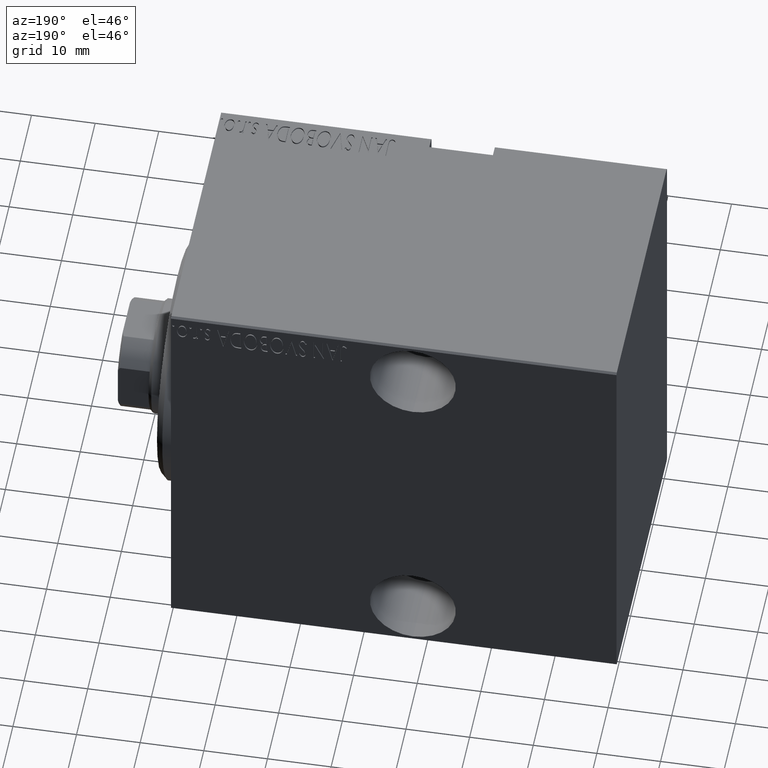
[diagram: clean part render]
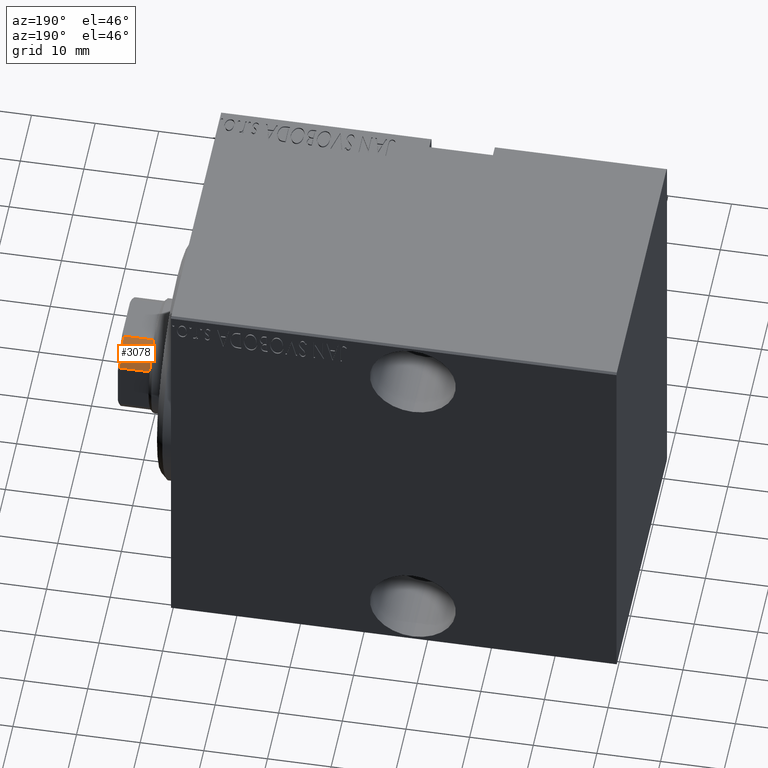
[diagram: same view with one face highlighted and labeled with its STEP entity id]
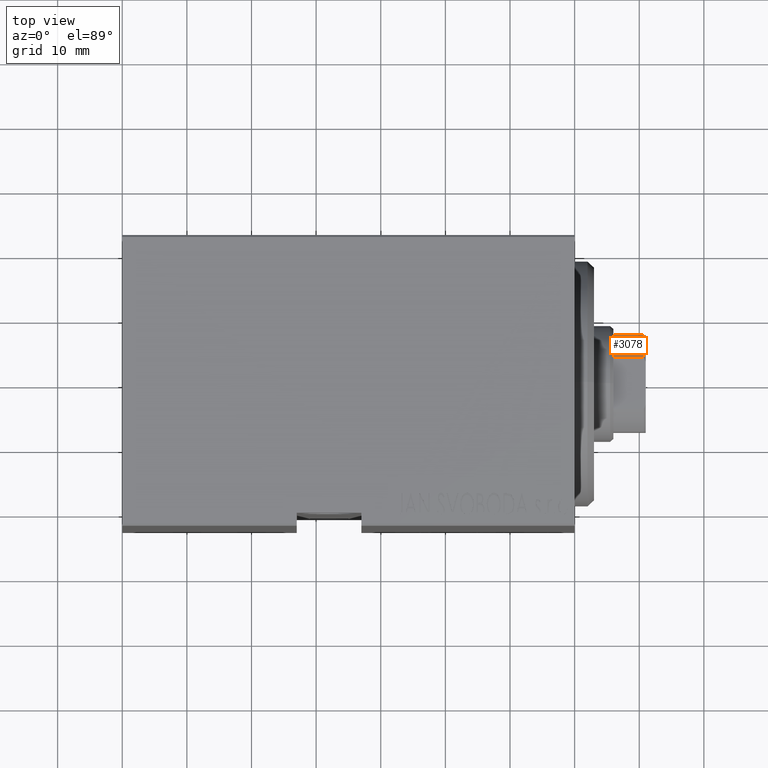
[diagram: same view with one face highlighted and labeled with its STEP entity id]
A machine part, auxiliary view. The second image highlights one B-rep face of the part: STEP entity #3078.
A second angle (top view) of the same face is appended — the face is thin or edge-on in the first view.
In plain terms, the highlighted cylindrical surface (partial cylindrical patch) has radius 8.5 mm, axis along (1, 0, -0).
Its self-contained STEP definition (entity closure, byte-faithful):
#462 = VERTEX_POINT ( 'NONE', #22997 ) ;
#794 = CIRCLE ( 'NONE', #29910, 8.500000000000007105 ) ;
#2735 = CARTESIAN_POINT ( 'NONE',  ( 0.000000000000000000, 0.000000000000000000, 74.70000000000001705 ) ) ;
#3002 = ORIENTED_EDGE ( 'NONE', *, *, #12609, .T. ) ;
#3078 = ADVANCED_FACE ( 'NONE', ( #28324 ), #21797, .T. ) ;
#3341 = ORIENTED_EDGE ( 'NONE', *, *, #26307, .T. ) ;
#3598 = ORIENTED_EDGE ( 'NONE', *, *, #32247, .T. ) ;
#3886 = CARTESIAN_POINT ( 'NONE',  ( -4.000000000000000000, 7.500000000000000888, -0.001000000000001000089 ) ) ;
#6045 = AXIS2_PLACEMENT_3D ( 'NONE', #25059, #35039, #14624 ) ;
#7179 = CARTESIAN_POINT ( 'NONE',  ( -7.499999999999996447, 4.000000000000008882, -0.001000000000001000089 ) ) ;
#8078 = CIRCLE ( 'NONE', #13621, 8.500000000000000000 ) ;
#8302 = ORIENTED_EDGE ( 'NONE', *, *, #25785, .F. ) ;
#12609 = EDGE_CURVE ( 'NONE', #23136, #462, #794, .T. ) ;
#12800 = DIRECTION ( 'NONE',  ( 0.000000000000000000, 0.000000000000000000, 1.000000000000000000 ) ) ;
#13361 = CARTESIAN_POINT ( 'NONE',  ( -4.000000000000000000, 7.500000000000000888, 74.70000000000001705 ) ) ;
#13621 = AXIS2_PLACEMENT_3D ( 'NONE', #2735, #15949, #25948 ) ;
#14624 = DIRECTION ( 'NONE',  ( 1.000000000000000000, 0.000000000000000000, 0.000000000000000000 ) ) ;
#14997 = DIRECTION ( 'NONE',  ( -0.000000000000000000, -0.000000000000000000, 1.000000000000000000 ) ) ;
#15413 = CARTESIAN_POINT ( 'NONE',  ( 0.000000000000000000, 0.000000000000000000, 70.00000000000000000 ) ) ;
#15949 = DIRECTION ( 'NONE',  ( -0.000000000000000000, -0.000000000000000000, -1.000000000000000000 ) ) ;
#20830 = DIRECTION ( 'NONE',  ( -0.000000000000000000, -0.000000000000000000, 1.000000000000000000 ) ) ;
#21797 = CYLINDRICAL_SURFACE ( 'NONE', #6045, 8.500000000000000000 ) ;
#22997 = CARTESIAN_POINT ( 'NONE',  ( -7.499999999999996447, 4.000000000000011546, 70.00000000000000000 ) ) ;
#23136 = VERTEX_POINT ( 'NONE', #32538 ) ;
#25059 = CARTESIAN_POINT ( 'NONE',  ( 0.000000000000000000, 0.000000000000000000, -0.001000000000001000089 ) ) ;
#25785 = EDGE_CURVE ( 'NONE', #23136, #36460, #30809, .T. ) ;
#25948 = DIRECTION ( 'NONE',  ( 1.000000000000000000, 0.000000000000000000, 0.000000000000000000 ) ) ;
#26205 = EDGE_LOOP ( 'NONE', ( #3341, #3598, #8302, #3002 ) ) ;
#26307 = EDGE_CURVE ( 'NONE', #462, #33719, #36959, .T. ) ;
#28324 = FACE_OUTER_BOUND ( 'NONE', #26205, .T. ) ;
#28800 = CARTESIAN_POINT ( 'NONE',  ( -7.499999999999996447, 4.000000000000008882, 74.70000000000001705 ) ) ;
#29910 = AXIS2_PLACEMENT_3D ( 'NONE', #15413, #12800, #41934 ) ;
#30809 = LINE ( 'NONE', #3886, #39150 ) ;
#32247 = EDGE_CURVE ( 'NONE', #33719, #36460, #8078, .T. ) ;
#32538 = CARTESIAN_POINT ( 'NONE',  ( -3.999999999999997335, 7.500000000000000888, 70.00000000000001421 ) ) ;
#33719 = VERTEX_POINT ( 'NONE', #28800 ) ;
#35039 = DIRECTION ( 'NONE',  ( -0.000000000000000000, -0.000000000000000000, 1.000000000000000000 ) ) ;
#36460 = VERTEX_POINT ( 'NONE', #13361 ) ;
#36959 = LINE ( 'NONE', #7179, #41920 ) ;
#39150 = VECTOR ( 'NONE', #20830, 1000.000000000000000 ) ;
#41920 = VECTOR ( 'NONE', #14997, 1000.000000000000000 ) ;
#41934 = DIRECTION ( 'NONE',  ( 1.000000000000000000, 0.000000000000000000, 0.000000000000000000 ) ) ;